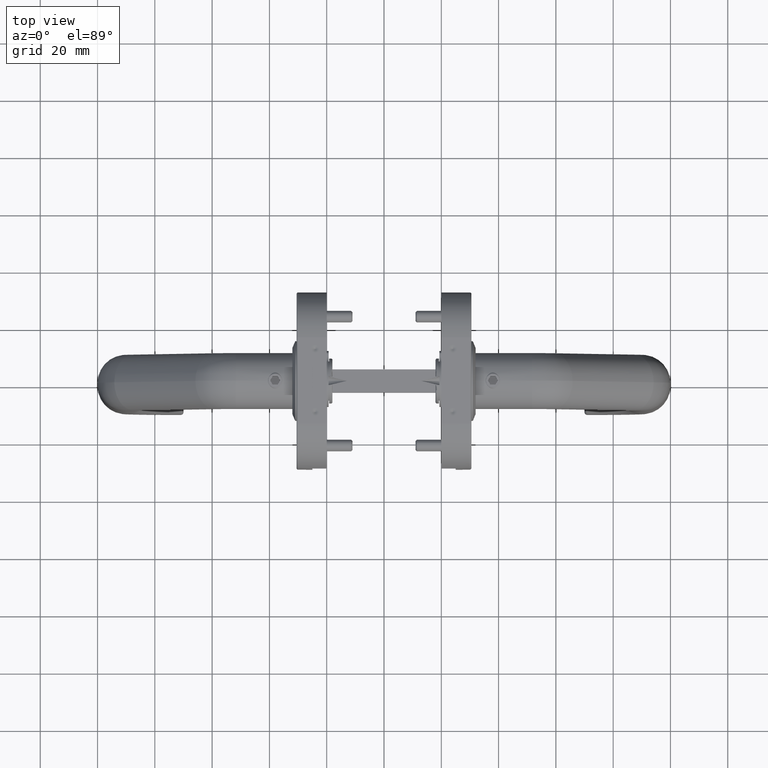
[diagram: clean part render]
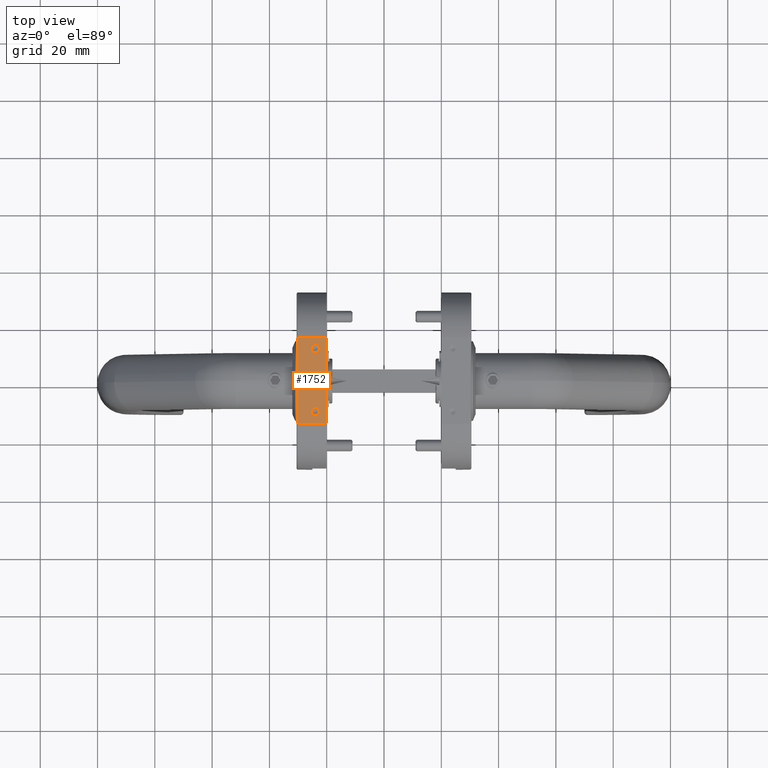
[diagram: same view with one face highlighted and labeled with its STEP entity id]
A machine part, top view. The second image highlights one B-rep face of the part: STEP entity #1752.
In plain terms, the highlighted planar face has unit normal (-0, 0, 1).
Its self-contained STEP definition (entity closure, byte-faithful):
#1134 = EDGE_LOOP ( 'NONE', ( #15993, #1750, #1661, #20075 ) ) ;
#1161 = CARTESIAN_POINT ( 'NONE',  ( 16.00000000000001421, -14.99999999999998757, -0.5000000000000004441 ) ) ;
#1167 = ORIENTED_EDGE ( 'NONE', *, *, #14650, .T. ) ;
#1237 = DIRECTION ( 'NONE',  ( 0.000000000000000000, -1.000000000000000000, -0.000000000000000000 ) ) ;
#1661 = ORIENTED_EDGE ( 'NONE', *, *, #17961, .F. ) ;
#1664 = VERTEX_POINT ( 'NONE', #9305 ) ;
#1750 = ORIENTED_EDGE ( 'NONE', *, *, #14676, .T. ) ;
#1752 = ADVANCED_FACE ( 'NONE', ( #17229, #8000, #16198 ), #12733, .T. ) ;
#2725 = CIRCLE ( 'NONE', #12914, 1.429269377658075380 ) ;
#2777 = CARTESIAN_POINT ( 'NONE',  ( 16.00000000000001421, -11.00000000000000355, -7.929269377658067164 ) ) ;
#2886 = CARTESIAN_POINT ( 'NONE',  ( 16.00000000000001421, -14.99999999999998757, -10.50000000000000000 ) ) ;
#3537 = EDGE_LOOP ( 'NONE', ( #1167 ) ) ;
#4427 = CARTESIAN_POINT ( 'NONE',  ( 16.00000000000001421, -11.00000000000000355, -6.500000000000000888 ) ) ;
#4714 = CARTESIAN_POINT ( 'NONE',  ( 16.00000000000000711, -14.99999999999999289, -0.5000000000000038858 ) ) ;
#4873 = AXIS2_PLACEMENT_3D ( 'NONE', #2886, #15815, #16038 ) ;
#5153 = DIRECTION ( 'NONE',  ( 0.000000000000000000, 0.000000000000000000, 1.000000000000000000 ) ) ;
#5489 = CARTESIAN_POINT ( 'NONE',  ( 16.00000000000001421, 14.99999999999998757, -10.50000000000000000 ) ) ;
#5724 = VECTOR ( 'NONE', #10581, 1000.000000000000000 ) ;
#5785 = VECTOR ( 'NONE', #5153, 1000.000000000000000 ) ;
#6141 = VERTEX_POINT ( 'NONE', #10911 ) ;
#6485 = EDGE_CURVE ( 'NONE', #1664, #6796, #16403, .T. ) ;
#6796 = VERTEX_POINT ( 'NONE', #5489 ) ;
#7182 = DIRECTION ( 'NONE',  ( 0.000000000000000000, 0.000000000000000000, -1.000000000000000000 ) ) ;
#8000 = FACE_BOUND ( 'NONE', #15813, .T. ) ;
#8810 = CARTESIAN_POINT ( 'NONE',  ( 16.00000000000001421, 10.99999999999999645, -6.500000000000000888 ) ) ;
#8877 = VERTEX_POINT ( 'NONE', #16625 ) ;
#9105 = VECTOR ( 'NONE', #1237, 1000.000000000000000 ) ;
#9305 = CARTESIAN_POINT ( 'NONE',  ( 16.00000000000000711, -14.99999999999999289, -10.50000000000000000 ) ) ;
#9348 = CIRCLE ( 'NONE', #19003, 1.429269377658066720 ) ;
#10577 = LINE ( 'NONE', #15593, #5724 ) ;
#10581 = DIRECTION ( 'NONE',  ( 0.000000000000000000, 0.000000000000000000, 1.000000000000000000 ) ) ;
#10647 = DIRECTION ( 'NONE',  ( 0.000000000000000000, 1.000000000000000000, 0.000000000000000000 ) ) ;
#10801 = DIRECTION ( 'NONE',  ( -1.000000000000000000, -0.000000000000000000, -0.000000000000000000 ) ) ;
#10911 = CARTESIAN_POINT ( 'NONE',  ( 16.00000000000001421, 10.99999999999999645, -7.929269377658076046 ) ) ;
#11149 = LINE ( 'NONE', #1161, #9105 ) ;
#11875 = EDGE_CURVE ( 'NONE', #6141, #6141, #2725, .T. ) ;
#12733 = PLANE ( 'NONE',  #4873 ) ;
#12914 = AXIS2_PLACEMENT_3D ( 'NONE', #8810, #10801, #7182 ) ;
#14497 = LINE ( 'NONE', #18127, #5785 ) ;
#14650 = EDGE_CURVE ( 'NONE', #16116, #16116, #9348, .T. ) ;
#14665 = VERTEX_POINT ( 'NONE', #4714 ) ;
#14676 = EDGE_CURVE ( 'NONE', #8877, #14665, #11149, .T. ) ;
#15593 = CARTESIAN_POINT ( 'NONE',  ( 16.00000000000000711, -14.99999999999999289, -10.50000000000000000 ) ) ;
#15813 = EDGE_LOOP ( 'NONE', ( #20736 ) ) ;
#15815 = DIRECTION ( 'NONE',  ( 1.000000000000000000, 0.000000000000000000, 0.000000000000000000 ) ) ;
#15937 = EDGE_CURVE ( 'NONE', #6796, #8877, #14497, .T. ) ;
#15956 = DIRECTION ( 'NONE',  ( 0.000000000000000000, 0.000000000000000000, -1.000000000000000000 ) ) ;
#15993 = ORIENTED_EDGE ( 'NONE', *, *, #15937, .T. ) ;
#16038 = DIRECTION ( 'NONE',  ( 0.000000000000000000, 0.000000000000000000, -1.000000000000000000 ) ) ;
#16116 = VERTEX_POINT ( 'NONE', #2777 ) ;
#16198 = FACE_OUTER_BOUND ( 'NONE', #1134, .T. ) ;
#16403 = LINE ( 'NONE', #20469, #19245 ) ;
#16625 = CARTESIAN_POINT ( 'NONE',  ( 16.00000000000001421, 14.99999999999998757, -0.5000000000000038858 ) ) ;
#17229 = FACE_BOUND ( 'NONE', #3537, .T. ) ;
#17610 = DIRECTION ( 'NONE',  ( -1.000000000000000000, -0.000000000000000000, -0.000000000000000000 ) ) ;
#17961 = EDGE_CURVE ( 'NONE', #1664, #14665, #10577, .T. ) ;
#18127 = CARTESIAN_POINT ( 'NONE',  ( 16.00000000000001421, 14.99999999999998757, -10.50000000000000000 ) ) ;
#19003 = AXIS2_PLACEMENT_3D ( 'NONE', #4427, #17610, #15956 ) ;
#19245 = VECTOR ( 'NONE', #10647, 1000.000000000000000 ) ;
#20075 = ORIENTED_EDGE ( 'NONE', *, *, #6485, .T. ) ;
#20469 = CARTESIAN_POINT ( 'NONE',  ( 16.00000000000001421, -14.99999999999998757, -10.50000000000000000 ) ) ;
#20736 = ORIENTED_EDGE ( 'NONE', *, *, #11875, .T. ) ;